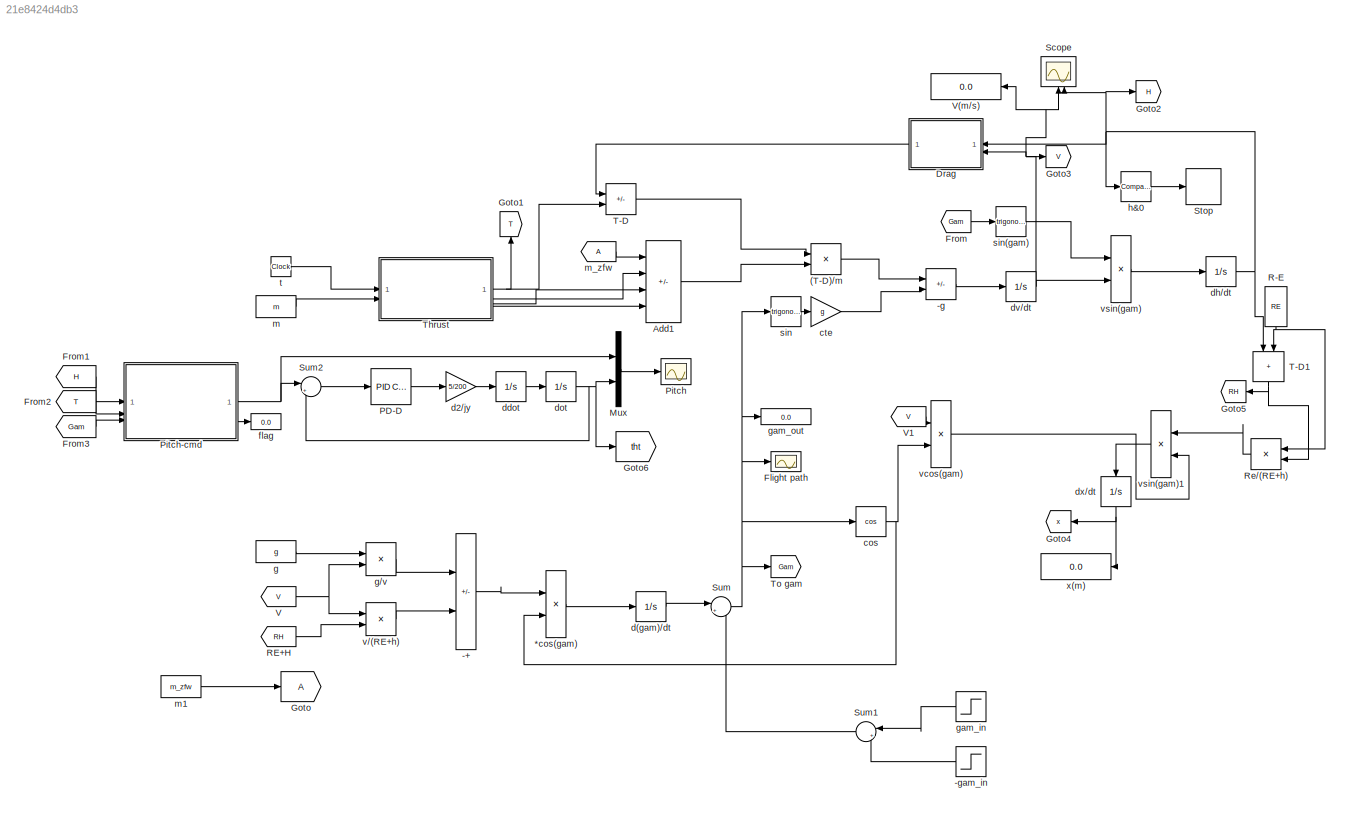
MODEL slx_21e8424d4db3
KIND model
CONFIG AbsTol = auto
CONFIG EnableMultiTasking = off
CONFIG FixedStep = auto
CONFIG MaxStep = auto
CONFIG MinStep = auto
CONFIG RelTol = 1e-3
CONFIG SampleTimeConstraint = Unconstrained
CONFIG SolverName = ode45
CONFIG StartTime = 0.0
CONFIG StopTime = 350
BLOCK [Product] (T-D)//m
  Inputs = */
BLOCK [Product] *cos(gam)
BLOCK [Sum] -+
  IconShape = rectangular
  Inputs = -+
BLOCK [Sum] -g
  IconShape = rectangular
  Inputs = +-
BLOCK [Step] -gam_in
  After = -gam_in
  Before = -gam_in
  NameLocation = top
  SampleTime = 0
  Time = t_turn+1
BLOCK [Sum] Add1
  IconShape = rectangular
  Inputs = ++--
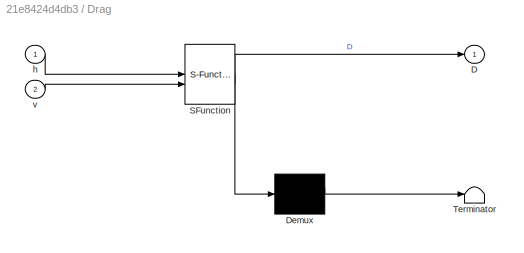
BLOCK [SubSystem] Drag
  ErrorFcn = Stateflow.Translate.translate
  NameLocation = top
  PermitHierarchicalResolution = ExplicitOnly
  SFBlockType = MATLAB Function
  TreatAsAtomicUnit = on
BLOCK [Demux] Drag/ Demux 
  Outputs = 1
BLOCK [S-Function] Drag/ SFunction 
  EnableBusSupport = on
  FunctionName = sf_sfun
  PortCounts = [2 2]
  SFcnIsStateOwnerBlock = off
  SFunctionDeploymentMode = off
  Tag = Stateflow S-Function 3
BLOCK [Terminator] Drag/ Terminator 
BLOCK [Outport] Drag/D
BLOCK [Inport] Drag/h
BLOCK [Inport] Drag/v
  Port = 2
BLOCK [Scope] Flight path
  Floating = off
  NumInputPorts = 1
  ScopeSpecificationString = Simulink.scopes.TimeScopeBlockCfg('CurrentConfiguration', extmgr.ConfigurationSet(extmgr.Configuration('Core','General UI',true),extmgr.Configuration('Core','Source UI',true),extmgr.Configuration('Sources','WiredSimulink',true,'DataLoggingVariableName','ScopeData1'),extmgr.Configuration('Visuals','Time Domain',true,'SerializedDisplays',{struct('MinYLimReal','-10','MaxYLimReal','10','YLabelReal',''...<+1317ch>
BLOCK [From] From
  GotoTag = Gam
BLOCK [From] From1
  GotoTag = H
BLOCK [From] From2
  GotoTag = T
BLOCK [From] From3
  GotoTag = Gam
BLOCK [Goto] Goto
BLOCK [Goto] Goto1
  GotoTag = T
  NameLocation = right
BLOCK [Goto] Goto2
  GotoTag = H
BLOCK [Goto] Goto3
  GotoTag = V
BLOCK [Goto] Goto4
  GotoTag = x
  NameLocation = top
BLOCK [Goto] Goto5
  GotoTag = RH
  NameLocation = top
BLOCK [Goto] Goto6
  GotoTag = tht
BLOCK [Mux] Mux
  DisplayOption = bar
  Inputs = 2
BLOCK [Reference] PD-D  REF=slpidlib/PID Controller
  LibrarySourceBlock = simulink/Continuous/PID Controller
  SourceBlock = slpidlib/PID Controller
  SourceType = PID 1dof
BLOCK [Scope] Pitch
  Floating = off
  NumInputPorts = 1
  ScopeSpecificationString = Simulink.scopes.TimeScopeBlockCfg('CurrentConfiguration', extmgr.ConfigurationSet(extmgr.Configuration('Core','General UI',true),extmgr.Configuration('Core','Source UI',true),extmgr.Configuration('Sources','WiredSimulink',true,'DataLoggingVariableName','ScopeData2'),extmgr.Configuration('Visuals','Time Domain',true,'SerializedDisplays',{struct('MinYLimReal','-10','MaxYLimReal','10','YLabelReal',''...<+1346ch>
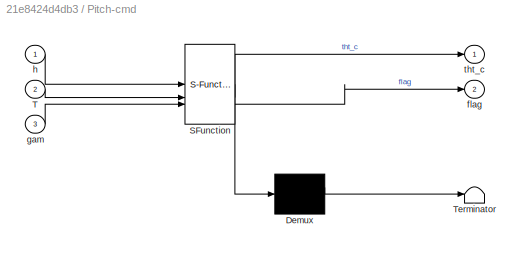
BLOCK [SubSystem] Pitch-cmd
  ErrorFcn = Stateflow.Translate.translate
  PermitHierarchicalResolution = ExplicitOnly
  SFBlockType = MATLAB Function
  TreatAsAtomicUnit = on
BLOCK [Demux] Pitch-cmd/ Demux 
  Outputs = 1
BLOCK [S-Function] Pitch-cmd/ SFunction 
  EnableBusSupport = on
  FunctionName = sf_sfun
  PortCounts = [3 3]
  SFcnIsStateOwnerBlock = off
  SFunctionDeploymentMode = off
  Tag = Stateflow S-Function 1
BLOCK [Terminator] Pitch-cmd/ Terminator 
BLOCK [Inport] Pitch-cmd/T
  Port = 2
BLOCK [Outport] Pitch-cmd/flag
  Port = 2
BLOCK [Inport] Pitch-cmd/gam
  Port = 3
BLOCK [Inport] Pitch-cmd/h
BLOCK [Outport] Pitch-cmd/tht_c
BLOCK [Constant] R-E
  NameLocation = left
  Value = RE
BLOCK [From] RE+H
  GotoTag = RH
  IconDisplay = Signal name
BLOCK [Product] Re//(RE+h)
  Inputs = */
  NameLocation = top
BLOCK [Scope] Scope
  Floating = off
  NameLocation = right
  NumInputPorts = 2
  ScopeSpecificationString = Simulink.scopes.TimeScopeBlockCfg('CurrentConfiguration', extmgr.ConfigurationSet(extmgr.Configuration('Core','General UI',true),extmgr.Configuration('Core','Source UI',true),extmgr.Configuration('Sources','WiredSimulink',true),extmgr.Configuration('Visuals','Time Domain',true,'SerializedDisplays',{struct('MinYLimReal','-10','MaxYLimReal','10','YLabelReal','','MinYLimMag','0','MaxYLimMag','10','Le...<+1307ch>
BLOCK [Stop] Stop
BLOCK [Sum] Sum
  Inputs = |++
BLOCK [Sum] Sum1
  Inputs = |++
  NameLocation = top
BLOCK [Sum] Sum2
  Inputs = |+-
BLOCK [Sum] T-D
  IconShape = rectangular
  Inputs = -+
BLOCK [Sum] T-D1
  IconShape = rectangular
  NameLocation = left
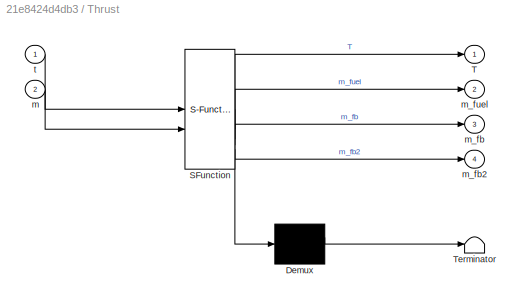
BLOCK [SubSystem] Thrust
  ErrorFcn = Stateflow.Translate.translate
  PermitHierarchicalResolution = ExplicitOnly
  SFBlockType = MATLAB Function
  TreatAsAtomicUnit = on
BLOCK [Demux] Thrust/ Demux 
  Outputs = 1
BLOCK [S-Function] Thrust/ SFunction 
  EnableBusSupport = on
  FunctionName = sf_sfun
  PortCounts = [2 5]
  SFcnIsStateOwnerBlock = off
  SFunctionDeploymentMode = off
  Tag = Stateflow S-Function 2
BLOCK [Terminator] Thrust/ Terminator 
BLOCK [Outport] Thrust/T
BLOCK [Inport] Thrust/m
  Port = 2
BLOCK [Outport] Thrust/m_fb
  Port = 3
BLOCK [Outport] Thrust/m_fb2
  Port = 4
BLOCK [Outport] Thrust/m_fuel
  Port = 2
BLOCK [Inport] Thrust/t
BLOCK [Goto] To gam
  GotoTag = Gam
BLOCK [From] V
  GotoTag = V
  IconDisplay = Signal name
BLOCK [Display] V(m//s)
  Decimation = 1
  NameLocation = top
BLOCK [From] V1
  GotoTag = V
  IconDisplay = Signal name
BLOCK [Trigonometry] cos
  Operator = cos
BLOCK [Gain] cte
  Gain = g
BLOCK [Integrator] d(gam)//dt
  InitialCondition = gam_0
BLOCK [Gain] d2//jy
  Gain = 5/200
BLOCK [Integrator] ddot
BLOCK [Integrator] dh//dt
  InitialCondition = h0
BLOCK [Integrator] dot
  InitialCondition = pi/2
BLOCK [Integrator] dv//dt
  InitialCondition = v0
BLOCK [Integrator] dx//dt
  InitialCondition = x0
  NameLocation = left
BLOCK [Display] flag
  Decimation = 1
BLOCK [Constant] g
  Value = g
BLOCK [Product] g//v
  Inputs = */
BLOCK [Step] gam_in
  After = 0
  Before = gam_in
  NameLocation = top
  SampleTime = 0
  Time = t_turn
BLOCK [Display] gam_out
  Decimation = 1
BLOCK [Reference] h&0  REF=simulink/Logic and Bit
Operations/Compare
To Zero
  SourceBlock = simulink/Logic and Bit\nOperations/Compare\nTo Zero
  SourceType = Compare To Zero
BLOCK [Constant] m
  Value = m
BLOCK [Constant] m1
  Value = m_zfw
BLOCK [From] m_zfw
  IconDisplay = Signal name
BLOCK [Trigonometry] sin
BLOCK [Trigonometry] sin(gam)
BLOCK [Clock] t
BLOCK [Product] v//(RE+h)
  Inputs = */
BLOCK [Product] vcos(gam)
BLOCK [Product] vsin(gam)
BLOCK [Product] vsin(gam)1
  NameLocation = top
BLOCK [Display] x(m)
  Decimation = 1
  NameLocation = top
LINE (T-D)//m:1 -> -g:1
LINE *cos(gam):1 -> d(gam)//dt:1
LINE -+:1 -> *cos(gam):1
LINE -g:1 -> dv//dt:1
LINE -gam_in:1 -> Sum1:2
LINE Add1:1 -> (T-D)//m:2
LINE Drag:1 -> T-D:1
LINE From1:1 -> Pitch-cmd:1
LINE From2:1 -> Pitch-cmd:2
LINE From3:1 -> Pitch-cmd:3
LINE From:1 -> sin(gam):1
LINE Mux:1 -> Pitch:1
LINE PD-D:1 -> d2//jy:1
NET Pitch-cmd:1 -> Mux:1, Sum2:1
LINE Pitch-cmd:2 -> flag:1
NET R-E:1 -> Re//(RE+h):1, T-D1:2
LINE RE+H:1 -> v//(RE+h):2
LINE Re//(RE+h):1 -> vsin(gam)1:1
LINE Sum1:1 -> Sum:2
LINE Sum2:1 -> PD-D:1
NET Sum:1 -> Flight path:1, To gam:1, cos:1, gam_out:1, sin:1
NET T-D1:1 -> Goto5:1, Re//(RE+h):2
LINE T-D:1 -> (T-D)//m:1
NET Thrust:1 -> Goto1:1, T-D:2
LINE Thrust:2 -> Add1:2
LINE Thrust:3 -> Add1:3
LINE Thrust:4 -> Add1:4
LINE V1:1 -> vcos(gam):1
NET V:1 -> g//v:2, v//(RE+h):1
NET cos:1 -> *cos(gam):2, vcos(gam):2
LINE cte:1 -> -g:2
LINE d(gam)//dt:1 -> Sum:1
LINE d2//jy:1 -> ddot:1
LINE ddot:1 -> dot:1
NET dh//dt:1 -> Drag:1, Goto2:1, Scope:2, T-D1:1, h&0:1
NET dot:1 -> Goto6:1, Mux:2, Sum2:2
NET dv//dt:1 -> Drag:2, Goto3:1, Scope:1, V(m//s):1, vsin(gam):2
NET dx//dt:1 -> Goto4:1, x(m):1
LINE g//v:1 -> -+:1
LINE g:1 -> g//v:1
LINE gam_in:1 -> Sum1:1
LINE h&0:1 -> Stop:1
LINE m1:1 -> Goto:1
LINE m:1 -> Thrust:2
LINE m_zfw:1 -> Add1:1
LINE sin(gam):1 -> vsin(gam):1
LINE sin:1 -> cte:1
LINE t:1 -> Thrust:1
LINE v//(RE+h):1 -> -+:2
LINE vcos(gam):1 -> vsin(gam)1:2
LINE vsin(gam)1:1 -> dx//dt:1
LINE vsin(gam):1 -> dh//dt:1
note: NET lines group one-source signal fan-out (src -> all destinations, sorted); 1:1 wires keep LINE
CHART Pitch-cmd states=1 transitions=1
  STATE_LABEL 'eML_blk_kernel()'
  STATE_LABEL 'SCRIPT:\nfunction [tht_c, flag] = fcn(h, T, gam)\n\npersistent f;\nif isempty(f)\n     f = 0;\nend\nif T<=0\n    tc = gam+pi;\n    if tc>pi\n        tc = pi;\n    end\n    f = 1;\nelseif T<=0 && h<1000\n    tc = pi/2;\nelse\n    tc = gam;\nend\nflag = f;\ntht_c = tc;\n'
CHART Thrust states=1 transitions=1
  STATE_LABEL 'eML_blk_kernel()'
  STATE_LABEL 'SCRIPT:\nfunction [T, m_fuel, m_fb, m_fb2] = fcn(t, m)\n\npersistent mfb;\npersistent mfb2;\nif isempty(mfb)\n    mfb = 0;\nend \nif isempty(mfb2)\n    mfb2 = 0;\nend \nm_fuel = 21491.26;\nif mfb <=0.65*m_fuel\n    thr = 34691.2;\n    mfb = t*m;\nelse\n    thr = 0;\nend\nif (125<t) && (t<295)\n    thr = -110000;\n    mfb2 = (t-125)*(m/3);\nend\nT = thr;\nm_fb = mfb;\nm_fb2 = mfb2;\nm_fuel = mfuel;\n'
CHART Drag states=1 transitions=1
  STATE_LABEL 'eML_blk_kernel()'
  STATE_LABEL 'SCRIPT:\nfunction D = fcn(h, v)\n\nCD = 0.075; Di = 1.5; A = pi*Di^2/4; \n%density ISA model:\n if h<=11000 \n     T = 15.04 - 0.00649*h; \n     p = 101.29*((T+273.1)/288.08)^5.258;\n elseif (11000<h) && (h<=25000)\n    T = -56.46;\n    p = 22.65*exp(1.73-0.000157*h);\n else  \n     T = -131.21 + 0.00299*h;\n     p = 2.488* ((T+273.1)/216.6)^-11.388;\n end \n rho = p/(0.2869*(T+273.1));\n %drag force D:\n Drag = 0...<+31ch>'
CHART  states=0 transitions=0
CHART  states=0 transitions=0
CHART  states=0 transitions=0
